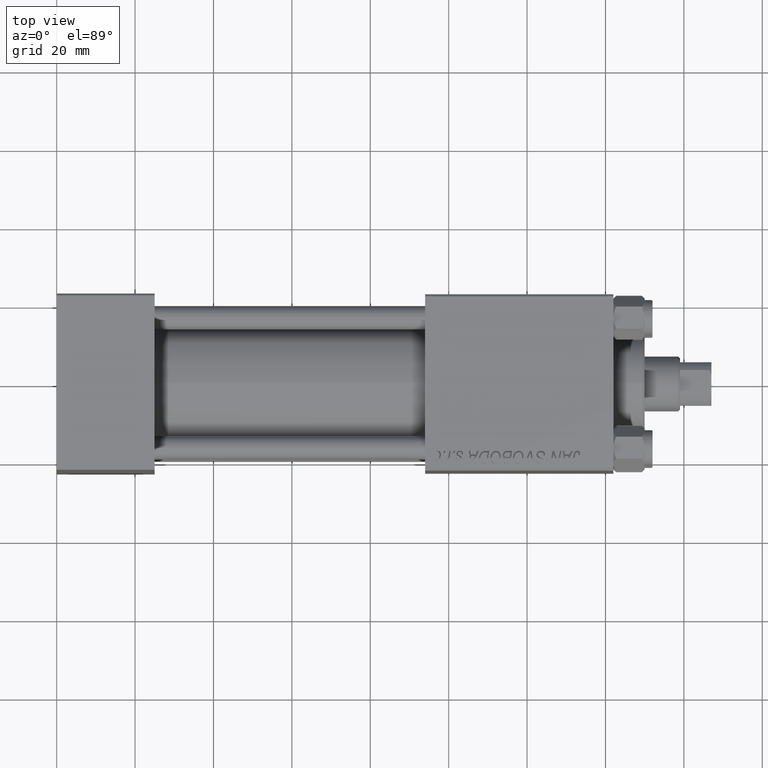
[diagram: clean part render]
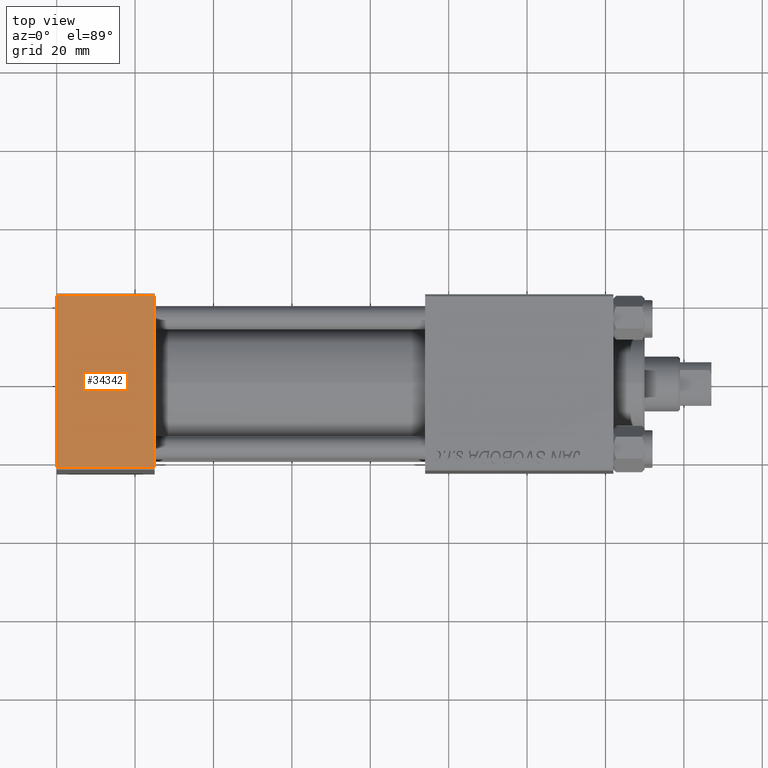
[diagram: same view with one face highlighted and labeled with its STEP entity id]
A machine part, top view. The second image highlights one B-rep face of the part: STEP entity #34342.
In plain terms, the highlighted planar face has unit normal (0, 0, -1).
Its self-contained STEP definition (entity closure, byte-faithful):
#5329 = VECTOR ( 'NONE', #43554, 1000.000000000000000 ) ;
#5638 = ORIENTED_EDGE ( 'NONE', *, *, #17442, .T. ) ;
#6976 = ORIENTED_EDGE ( 'NONE', *, *, #26761, .F. ) ;
#7508 = LINE ( 'NONE', #19123, #5329 ) ;
#10171 = DIRECTION ( 'NONE',  ( -1.000000000000000000, 0.000000000000000000, 0.000000000000000000 ) ) ;
#11369 = DIRECTION ( 'NONE',  ( 0.000000000000000000, 1.000000000000000000, 1.541976423090495387E-16 ) ) ;
#12760 = DIRECTION ( 'NONE',  ( 1.000000000000000000, 0.000000000000000000, 0.000000000000000000 ) ) ;
#12933 = VECTOR ( 'NONE', #12760, 1000.000000000000000 ) ;
#13744 = DIRECTION ( 'NONE',  ( 0.000000000000000000, -1.000000000000000000, -1.541976423090495387E-16 ) ) ;
#13986 = CARTESIAN_POINT ( 'NONE',  ( 25.00000000000000000, 22.00000000000000355, 35.00000000000000711 ) ) ;
#16210 = VERTEX_POINT ( 'NONE', #17869 ) ;
#17442 = EDGE_CURVE ( 'NONE', #16210, #23501, #43596, .T. ) ;
#17869 = CARTESIAN_POINT ( 'NONE',  ( 0.000000000000000000, -21.99999999999998934, 35.00000000000000000 ) ) ;
#18641 = EDGE_CURVE ( 'NONE', #19599, #21953, #36957, .T. ) ;
#19123 = CARTESIAN_POINT ( 'NONE',  ( 25.00000000000000000, 22.50000000000000355, 35.00000000000000711 ) ) ;
#19599 = VERTEX_POINT ( 'NONE', #13986 ) ;
#20905 = AXIS2_PLACEMENT_3D ( 'NONE', #42425, #22725, #11369 ) ;
#21412 = ORIENTED_EDGE ( 'NONE', *, *, #29298, .T. ) ;
#21953 = VERTEX_POINT ( 'NONE', #23397 ) ;
#22725 = DIRECTION ( 'NONE',  ( 0.000000000000000000, 1.541976423090495387E-16, -1.000000000000000000 ) ) ;
#23397 = CARTESIAN_POINT ( 'NONE',  ( 0.000000000000000000, 22.00000000000000355, 35.00000000000000711 ) ) ;
#23501 = VERTEX_POINT ( 'NONE', #49841 ) ;
#26761 = EDGE_CURVE ( 'NONE', #19599, #23501, #7508, .T. ) ;
#29298 = EDGE_CURVE ( 'NONE', #21953, #16210, #36253, .T. ) ;
#31913 = EDGE_LOOP ( 'NONE', ( #21412, #5638, #6976, #37470 ) ) ;
#33171 = CARTESIAN_POINT ( 'NONE',  ( 0.000000000000000000, 22.00000000000000355, 35.00000000000000711 ) ) ;
#34342 = ADVANCED_FACE ( 'NONE', ( #35354 ), #41934, .F. ) ;
#35354 = FACE_OUTER_BOUND ( 'NONE', #31913, .T. ) ;
#36253 = LINE ( 'NONE', #37246, #42484 ) ;
#36957 = LINE ( 'NONE', #33171, #49220 ) ;
#37246 = CARTESIAN_POINT ( 'NONE',  ( 0.000000000000000000, 22.50000000000000355, 35.00000000000000711 ) ) ;
#37470 = ORIENTED_EDGE ( 'NONE', *, *, #18641, .T. ) ;
#41934 = PLANE ( 'NONE',  #20905 ) ;
#42425 = CARTESIAN_POINT ( 'NONE',  ( 25.00000000000000000, 22.50000000000000355, 35.00000000000000711 ) ) ;
#42484 = VECTOR ( 'NONE', #13744, 1000.000000000000000 ) ;
#43554 = DIRECTION ( 'NONE',  ( 0.000000000000000000, -1.000000000000000000, -1.541976423090495387E-16 ) ) ;
#43596 = LINE ( 'NONE', #43850, #12933 ) ;
#43850 = CARTESIAN_POINT ( 'NONE',  ( 25.00000000000000000, -22.00000000000000355, 35.00000000000000000 ) ) ;
#49220 = VECTOR ( 'NONE', #10171, 1000.000000000000000 ) ;
#49841 = CARTESIAN_POINT ( 'NONE',  ( 25.00000000000000000, -21.99999999999998934, 35.00000000000000000 ) ) ;